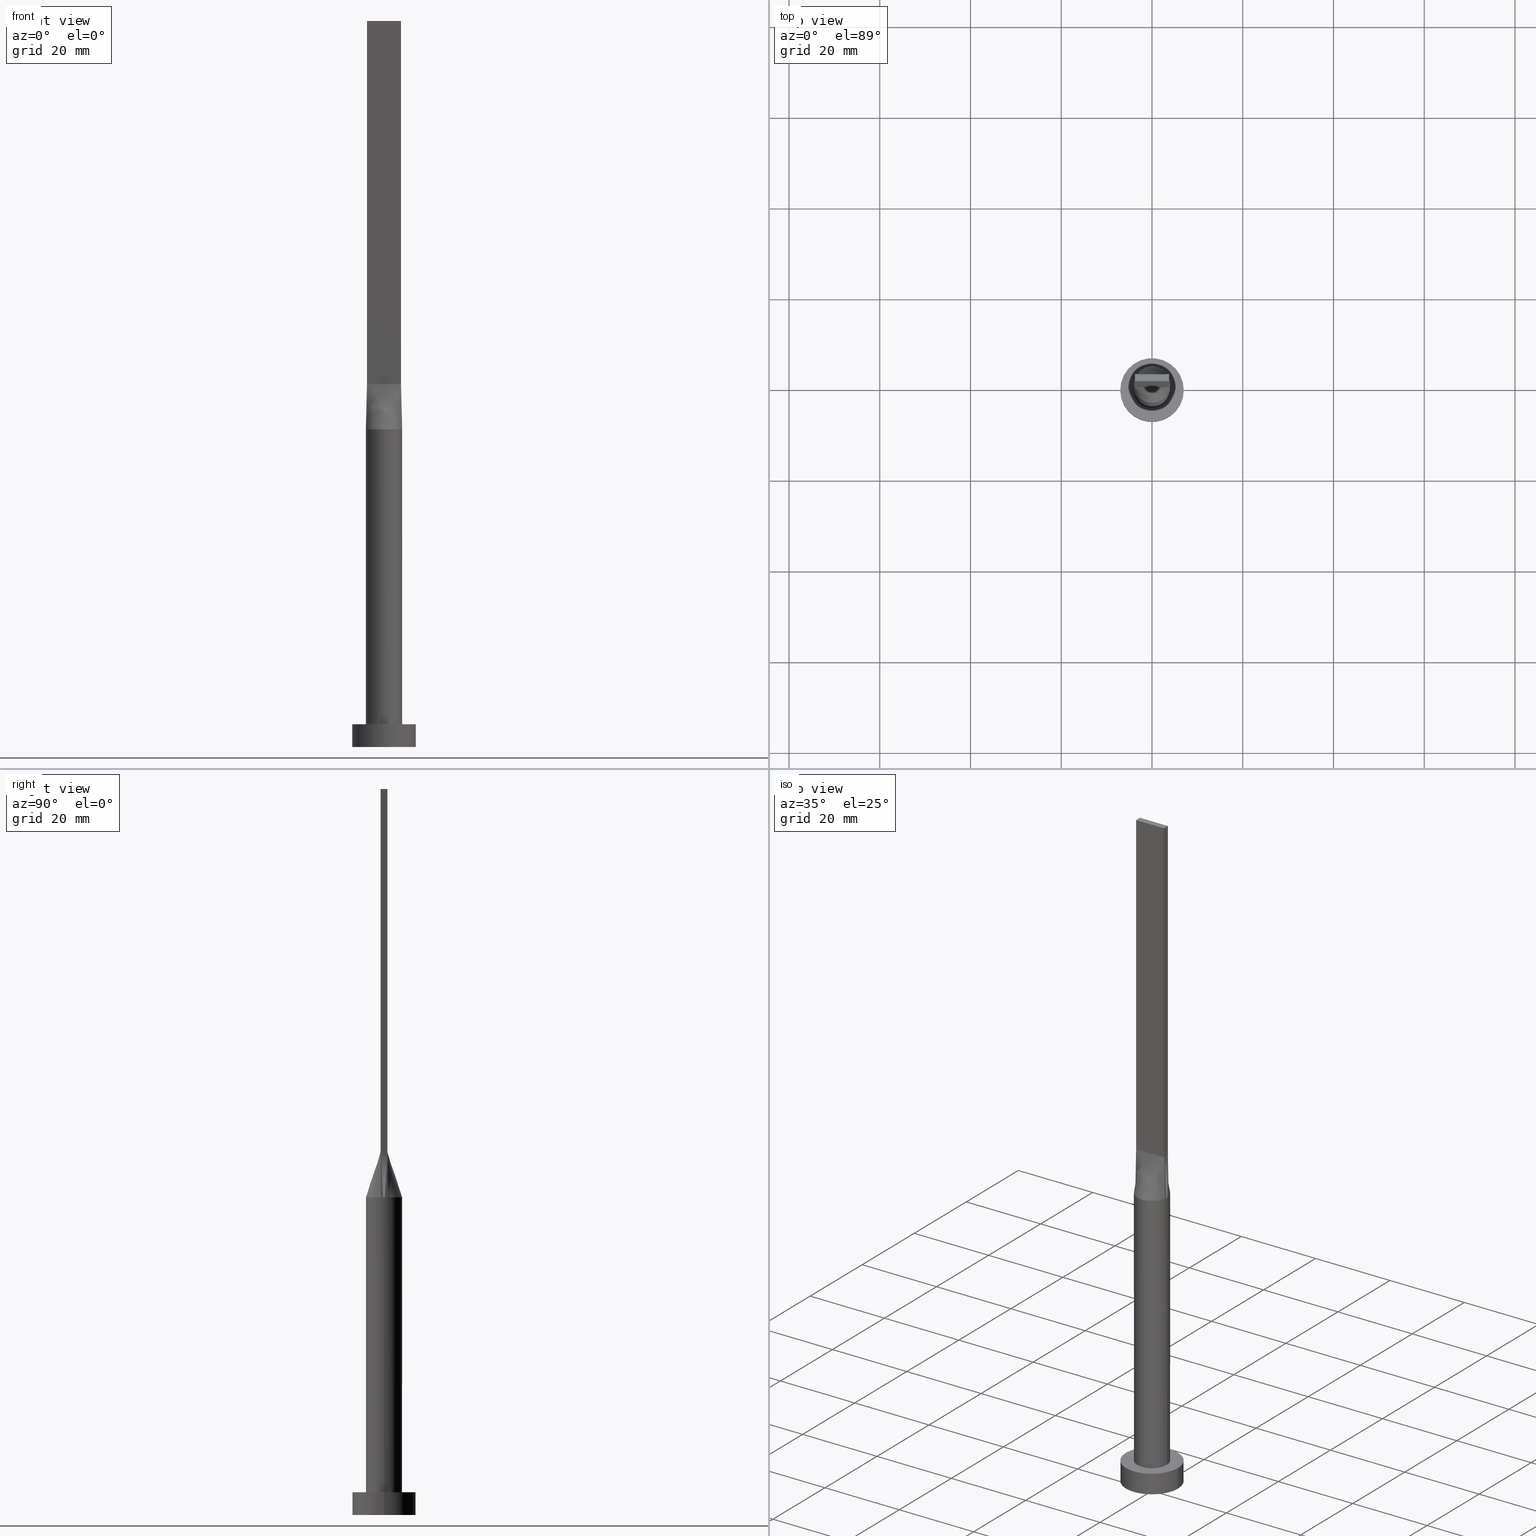
[diagram: canonical four-view strip — front | top / right | iso, engineering-drawing reading convention]
A machine part, canonical four-view strip (front | top / right | iso — engineering-drawing reading convention). The complete STEP part file that produces these views, byte-faithful:
ISO-10303-21;
HEADER;
FILE_DESCRIPTION (( 'STEP AP203' ),
    '1' );
FILE_NAME ('a728.STEP',
    '2023-02-13T10:45:21',
    ( '' ),
    ( '' ),
    'SwSTEP 2.0',
    'SolidWorks 2019',
    '' );
FILE_SCHEMA (( 'CONFIG_CONTROL_DESIGN' ));
ENDSEC;

DATA;
#1 = CIRCLE ( 'NONE', #311, 4.000000000000000000 ) ;
#2 = CARTESIAN_POINT ( 'NONE',  ( 3.750000000000000000, 0.7500000000000002220, 80.00000000000000000 ) ) ;
#3 = AXIS2_PLACEMENT_3D ( 'NONE', #348, #392, #345 ) ;
#4 = CARTESIAN_POINT ( 'NONE',  ( 3.124999999999999556, 0.7500000000000003331, 80.00000000000000000 ) ) ;
#5 = EDGE_CURVE ( 'NONE', #216, #531, #390, .T. ) ;
#6 = CARTESIAN_POINT ( 'NONE',  ( -3.390424152328988416, 2.159240079384419975, 70.00000000000001421 ) ) ;
#7 = ORIENTED_EDGE ( 'NONE', *, *, #253, .T. ) ;
#8 = CARTESIAN_POINT ( 'NONE',  ( -3.922322702763681335, -0.7844645405527344018, 70.00000000000000000 ) ) ;
#9 = DIRECTION ( 'NONE',  ( 1.000000000000000000, 0.000000000000000000, -0.000000000000000000 ) ) ;
#10 = ADVANCED_FACE ( 'NONE', ( #245 ), #334, .F. ) ;
#11 = ORIENTED_EDGE ( 'NONE', *, *, #109, .F. ) ;
#12 = CARTESIAN_POINT ( 'NONE',  ( 0.000000000000000000, 0.000000000000000000, 70.00000000000000000 ) ) ;
#13 = LINE ( 'NONE', #414, #499 ) ;
#14 = LINE ( 'NONE', #185, #482 ) ;
#15 = CARTESIAN_POINT ( 'NONE',  ( 0.000000000000000000, 0.000000000000000000, 70.00000000000000000 ) ) ;
#16 = AXIS2_PLACEMENT_3D ( 'NONE', #192, #296, #527 ) ;
#17 = LINE ( 'NONE', #513, #211 ) ;
#18 = CARTESIAN_POINT ( 'NONE',  ( 3.750000000000000000, -0.7499999999999997780, 160.0000000000000000 ) ) ;
#19 = ADVANCED_FACE ( 'NONE', ( #564 ), #23, .F. ) ;
#20 = CARTESIAN_POINT ( 'NONE',  ( 0.000000000000000000, 0.000000000000000000, 70.00000000000000000 ) ) ;
#21 = ORIENTED_EDGE ( 'NONE', *, *, #5, .T. ) ;
#22 = CARTESIAN_POINT ( 'NONE',  ( -3.750000000000000000, -0.7499999999999993339, 80.00000000000000000 ) ) ;
#23 = PLANE ( 'NONE',  #16 ) ;
#24 = CARTESIAN_POINT ( 'NONE',  ( -3.922691944042750123, 0.7845383302616953936, 70.00000000000000000 ) ) ;
#25 = VECTOR ( 'NONE', #397, 1000.000000000000000 ) ;
#26 = CC_DESIGN_PERSON_AND_ORGANIZATION_ASSIGNMENT ( #288, #437, ( #126 ) ) ;
#27 = DIRECTION ( 'NONE',  ( -0.000000000000000000, 1.000000000000000000, -0.000000000000000000 ) ) ;
#28 = COORDINATED_UNIVERSAL_TIME_OFFSET ( 1, 0, .AHEAD. ) ;
#29 = ORIENTED_EDGE ( 'NONE', *, *, #163, .F. ) ;
#30 = CARTESIAN_POINT ( 'NONE',  ( -3.750000000000000000, -0.7499999999999993339, 160.0000000000000000 ) ) ;
#31 = DIRECTION ( 'NONE',  ( 1.000000000000000000, -5.782411586589357392E-17, 0.000000000000000000 ) ) ;
#32 = EDGE_LOOP ( 'NONE', ( #566, #350, #512, #250 ) ) ;
#33 = APPROVAL_STATUS ( 'not_yet_approved' ) ;
#34 = ORIENTED_EDGE ( 'NONE', *, *, #569, .F. ) ;
#35 = CARTESIAN_POINT ( 'NONE',  ( -3.749999999999999556, 0.2499999999999998890, 79.99999999999998579 ) ) ;
#36 = CARTESIAN_POINT ( 'NONE',  ( -0.5465359351457050874, 4.000000000000000000, 69.99999999999998579 ) ) ;
#37 = ORIENTED_EDGE ( 'NONE', *, *, #214, .T. ) ;
#38 = ORIENTED_EDGE ( 'NONE', *, *, #502, .F. ) ;
#39 = SECURITY_CLASSIFICATION ( '', '', #530 ) ;
#40 = CARTESIAN_POINT ( 'NONE',  ( -3.750000000000000000, 0.7500000000000002220, 80.00000000000000000 ) ) ;
#41 = EDGE_CURVE ( 'NONE', #379, #267, #528, .T. ) ;
#42 = DIRECTION ( 'NONE',  ( -0.000000000000000000, 0.000000000000000000, -1.000000000000000000 ) ) ;
#43 = ORIENTED_EDGE ( 'NONE', *, *, #328, .T. ) ;
#44 = CARTESIAN_POINT ( 'NONE',  ( -1.091295599582913445, -3.883835547170274349, 70.00000000000000000 ) ) ;
#45 = CARTESIAN_POINT ( 'NONE',  ( -0.6250000000000019984, 0.7500000000000002220, 79.99999999999998579 ) ) ;
#46 = EDGE_CURVE ( 'NONE', #531, #319, #432, .T. ) ;
#47 = CARTESIAN_POINT ( 'NONE',  ( 1.562499999999998890, 0.7500000000000002220, 79.99999999999998579 ) ) ;
#48 = ORIENTED_EDGE ( 'NONE', *, *, #149, .T. ) ;
#49 = DIRECTION ( 'NONE',  ( 0.000000000000000000, 0.000000000000000000, 1.000000000000000000 ) ) ;
#50 = CARTESIAN_POINT ( 'NONE',  ( 3.749999999999999556, 0.5000000000000002220, 79.99999999999998579 ) ) ;
#51 = CLOSED_SHELL ( 'NONE', ( #336, #292, #426, #526, #476, #310, #174, #57, #393, #448, #19, #90, #10, #494, #119 ) ) ;
#52 = CC_DESIGN_APPROVAL ( #418, ( #39 ) ) ;
#53 = FACE_OUTER_BOUND ( 'NONE', #262, .T. ) ;
#54 = DIRECTION ( 'NONE',  ( 1.000000000000000000, 0.000000000000000000, -0.000000000000000000 ) ) ;
#55 = CARTESIAN_POINT ( 'NONE',  ( 3.750000000000000000, -0.7499999999999997780, 80.00000000000000000 ) ) ;
#56 = CIRCLE ( 'NONE', #247, 4.000000000000000000 ) ;
#57 = ADVANCED_FACE ( 'NONE', ( #382 ), #453, .T. ) ;
#58 = DIRECTION ( 'NONE',  ( -1.000000000000000000, 0.000000000000000000, 0.000000000000000000 ) ) ;
#59 = VECTOR ( 'NONE', #150, 1000.000000000000000 ) ;
#60 = DIRECTION ( 'NONE',  ( 0.000000000000000000, -1.000000000000000000, 0.000000000000000000 ) ) ;
#61 = ORGANIZATION ( 'NEUR�EN�', 'NEUR�EN�', '' ) ;
#62 = CARTESIAN_POINT ( 'NONE',  ( 0.000000000000000000, 0.000000000000000000, 0.000000000000000000 ) ) ;
#63 = CARTESIAN_POINT ( 'NONE',  ( 2.187499999999999556, -0.7499999999999995559, 79.99999999999998579 ) ) ;
#64 = CARTESIAN_POINT ( 'NONE',  ( 3.750000000000000000, -0.7499999999999997780, 160.0000000000000000 ) ) ;
#65 = APPROVAL_DATE_TIME ( #301, #418 ) ;
#66 = DIRECTION ( 'NONE',  ( -1.000000000000000000, 0.000000000000000000, 0.000000000000000000 ) ) ;
#67 = EDGE_CURVE ( 'NONE', #379, #319, #278, .T. ) ;
#68 = EDGE_LOOP ( 'NONE', ( #37, #366 ) ) ;
#69 = DATE_AND_TIME ( #260, #265 ) ;
#70 = EDGE_LOOP ( 'NONE', ( #557, #76, #506, #161, #550 ) ) ;
#71 = CARTESIAN_POINT ( 'NONE',  ( 0.000000000000000000, 0.000000000000000000, 70.00000000000000000 ) ) ;
#72 = LINE ( 'NONE', #158, #59 ) ;
#73 = AXIS2_PLACEMENT_3D ( 'NONE', #71, #166, #440 ) ;
#74 = DIRECTION ( 'NONE',  ( -1.000000000000000000, 5.782411586589357392E-17, 0.000000000000000000 ) ) ;
#75 = APPROVAL_ROLE ( '' ) ;
#76 = ORIENTED_EDGE ( 'NONE', *, *, #182, .T. ) ;
#77 =( NAMED_UNIT ( * ) PLANE_ANGLE_UNIT ( ) SI_UNIT ( $, .RADIAN. ) );
#78 = CARTESIAN_POINT ( 'NONE',  ( 3.922678046951852959, 0.7845356715334603770, 70.00000000000000000 ) ) ;
#79 = CARTESIAN_POINT ( 'NONE',  ( 3.140797583654741931, 2.520780954342106028, 70.00000000000000000 ) ) ;
#80 = APPROVAL_STATUS ( 'not_yet_approved' ) ;
#81 = CARTESIAN_POINT ( 'NONE',  ( 3.750000000000000000, 0.7500000000000002220, 160.0000000000000000 ) ) ;
#82 = CARTESIAN_POINT ( 'NONE',  ( -3.390424152328988416, 2.159240079384419975, 70.00000000000001421 ) ) ;
#83 = DATE_TIME_ROLE ( 'creation_date' ) ;
#84 = DIRECTION ( 'NONE',  ( -0.01722960997854780865, -0.003445921995709440040, -0.9998456211643809155 ) ) ;
#85 = EDGE_CURVE ( 'NONE', #332, #531, #13, .T. ) ;
#86 = CARTESIAN_POINT ( 'NONE',  ( -3.858220138661117460, -1.104977361065555774, 70.00000000000001421 ) ) ;
#87 = CIRCLE ( 'NONE', #493, 4.000000000000000000 ) ;
#88 = DIRECTION ( 'NONE',  ( -0.000000000000000000, -0.000000000000000000, -1.000000000000000000 ) ) ;
#89 = VERTEX_POINT ( 'NONE', #395 ) ;
#90 = ADVANCED_FACE ( 'NONE', ( #53 ), #233, .F. ) ;
#91 = CARTESIAN_POINT ( 'NONE',  ( -1.562500000000001332, 0.7500000000000002220, 79.99999999999998579 ) ) ;
#92 = APPROVAL_PERSON_ORGANIZATION ( #314, #243, #97 ) ;
#93 = CARTESIAN_POINT ( 'NONE',  ( -3.922322702763681335, 0.7844645405527345128, 70.00000000000000000 ) ) ;
#94 = B_SPLINE_SURFACE_WITH_KNOTS ( 'NONE', 3, 1, ( 
 ( #169, #128 ),
 ( #570, #258 ),
 ( #438, #35 ),
 ( #451, #545 ),
 ( #176, #173 ),
 ( #8, #461 ) ),
 .UNSPECIFIED., .F., .F., .F.,
 ( 4, 2, 4 ),
 ( 2, 2 ),
 ( 0.000000000000000000, 0.5000000000000000000, 1.000000000000000000 ),
 ( 0.000000000000000000, 1.000000000000000000 ),
 .UNSPECIFIED. ) ;
#95 = CARTESIAN_POINT ( 'NONE',  ( -0.5465359351457050874, 4.000000000000000000, 69.99999999999998579 ) ) ;
#96 = CARTESIAN_POINT ( 'NONE',  ( -3.124999999999999556, -0.7499999999999993339, 79.99999999999998579 ) ) ;
#97 = APPROVAL_ROLE ( '' ) ;
#98 = CARTESIAN_POINT ( 'NONE',  ( 3.750000000000000000, 0.7500000000000002220, 80.00000000000000000 ) ) ;
#99 = CARTESIAN_POINT ( 'NONE',  ( -3.750000000000000000, -0.7499999999999993339, 80.00000000000000000 ) ) ;
#100 = LOCAL_TIME ( 11, 45, 21.00000000000000000, #460 ) ;
#101 = CARTESIAN_POINT ( 'NONE',  ( 3.437499999999999556, 0.7500000000000003331, 80.00000000000000000 ) ) ;
#102 = CARTESIAN_POINT ( 'NONE',  ( -4.000000000000000000, 0.000000000000000000, 70.00000000000000000 ) ) ;
#103 = ORIENTED_EDGE ( 'NONE', *, *, #140, .T. ) ;
#104 = CARTESIAN_POINT ( 'NONE',  ( 3.390424152328988416, -2.159240079384420419, 70.00000000000002842 ) ) ;
#105 = EDGE_CURVE ( 'NONE', #436, #332, #468, .T. ) ;
#106 = FACE_OUTER_BOUND ( 'NONE', #68, .T. ) ;
#107 = DIRECTION ( 'NONE',  ( -0.000000000000000000, -0.000000000000000000, -1.000000000000000000 ) ) ;
#108 = CARTESIAN_POINT ( 'NONE',  ( -0.3125000000000004441, -0.7499999999999993339, 80.00000000000000000 ) ) ;
#109 = EDGE_CURVE ( 'NONE', #198, #524, #318, .T. ) ;
#110 = DIRECTION ( 'NONE',  ( 1.000000000000000000, 0.000000000000000000, 0.000000000000000000 ) ) ;
#111 = CARTESIAN_POINT ( 'NONE',  ( -3.748423346357937280, 1.451418640363469015, 70.00000000000001421 ) ) ;
#112 = VERTEX_POINT ( 'NONE', #177 ) ;
#113 = CARTESIAN_POINT ( 'NONE',  ( 0.000000000000000000, 0.000000000000000000, 5.000000000000000000 ) ) ;
#114 = CARTESIAN_POINT ( 'NONE',  ( 3.858220138661116128, 1.104977361065556440, 70.00000000000000000 ) ) ;
#115 = CARTESIAN_POINT ( 'NONE',  ( 3.999622889843378992, 9.846808768795811108E-16, 70.00000000000000000 ) ) ;
#116 = CARTESIAN_POINT ( 'NONE',  ( -3.836161351381840667, 0.7672322702763673119, 75.00000000000001421 ) ) ;
#117 = CARTESIAN_POINT ( 'NONE',  ( 3.390424152328985752, 2.159240079384420419, 70.00000000000001421 ) ) ;
#118 = VERTEX_POINT ( 'NONE', #464 ) ;
#119 = ADVANCED_FACE ( 'NONE', ( #146 ), #532, .T. ) ;
#120 = CARTESIAN_POINT ( 'NONE',  ( 3.922678046951852959, 0.7845356715334603770, 70.00000000000000000 ) ) ;
#121 = CALENDAR_DATE ( 2023, 13, 2 ) ;
#122 =( NAMED_UNIT ( * ) SI_UNIT ( $, .STERADIAN. ) SOLID_ANGLE_UNIT ( ) );
#123 = CARTESIAN_POINT ( 'NONE',  ( -3.922322702763681335, -0.7844645405527344018, 70.00000000000000000 ) ) ;
#124 = CARTESIAN_POINT ( 'NONE',  ( -3.750000000000000000, -0.7499999999999993339, 160.0000000000000000 ) ) ;
#125 = CARTESIAN_POINT ( 'NONE',  ( -1.562500000000000000, -0.7499999999999993339, 79.99999999999998579 ) ) ;
#126 = PRODUCT_DEFINITION_FORMATION_WITH_SPECIFIED_SOURCE ( 'LIBOVOLN�', '', #357, .NOT_KNOWN. ) ;
#127 = ORIENTED_EDGE ( 'NONE', *, *, #569, .T. ) ;
#128 = CARTESIAN_POINT ( 'NONE',  ( -3.750000000000000000, 0.7500000000000002220, 80.00000000000000000 ) ) ;
#129 = DIRECTION ( 'NONE',  ( -0.000000000000000000, -0.000000000000000000, -1.000000000000000000 ) ) ;
#130 = DIRECTION ( 'NONE',  ( -1.000000000000000000, 0.000000000000000000, 0.000000000000000000 ) ) ;
#131 = PRODUCT_RELATED_PRODUCT_CATEGORY ( 'detail', '', ( #357 ) ) ;
#132 = EDGE_LOOP ( 'NONE', ( #287, #160, #272, #21 ) ) ;
#133 = CARTESIAN_POINT ( 'NONE',  ( -3.125000000000000444, 0.7500000000000002220, 79.99999999999998579 ) ) ;
#134 = APPLICATION_CONTEXT ( 'configuration controlled 3d designs of mechanical parts and assemblies' ) ;
#135 = CIRCLE ( 'NONE', #574, 7.000000000000000000 ) ;
#136 = VECTOR ( 'NONE', #337, 1000.000000000000000 ) ;
#137 = ORIENTED_EDGE ( 'NONE', *, *, #270, .T. ) ;
#138 = AXIS2_PLACEMENT_3D ( 'NONE', #145, #413, #130 ) ;
#139 = DIRECTION ( 'NONE',  ( -0.000000000000000000, -0.000000000000000000, -1.000000000000000000 ) ) ;
#140 = EDGE_CURVE ( 'NONE', #219, #531, #180, .T. ) ;
#141 = ORIENTED_EDGE ( 'NONE', *, *, #376, .T. ) ;
#142 = CARTESIAN_POINT ( 'NONE',  ( 0.000000000000000000, 0.000000000000000000, 0.000000000000000000 ) ) ;
#143 = CARTESIAN_POINT ( 'NONE',  ( 2.499999999999999112, 0.7500000000000003331, 79.99999999999998579 ) ) ;
#144 = CARTESIAN_POINT ( 'NONE',  ( 3.749999999999999556, -0.4999999999999996669, 79.99999999999998579 ) ) ;
#145 = CARTESIAN_POINT ( 'NONE',  ( 0.000000000000000000, 0.000000000000000000, 5.000000000000000000 ) ) ;
#146 = FACE_OUTER_BOUND ( 'NONE', #484, .T. ) ;
#147 = AXIS2_PLACEMENT_3D ( 'NONE', #142, #223, #406 ) ;
#148 = PLANE ( 'NONE',  #240 ) ;
#149 = EDGE_CURVE ( 'NONE', #216, #324, #497, .T. ) ;
#150 = DIRECTION ( 'NONE',  ( 0.000000000000000000, -1.000000000000000000, 0.000000000000000000 ) ) ;
#151 = FACE_OUTER_BOUND ( 'NONE', #203, .T. ) ;
#152 = CARTESIAN_POINT ( 'NONE',  ( 3.922322702763681335, -0.7844645405527340687, 70.00000000000000000 ) ) ;
#153 = VECTOR ( 'NONE', #229, 1000.000000000000000 ) ;
#154 = AXIS2_PLACEMENT_3D ( 'NONE', #333, #190, #252 ) ;
#155 = CARTESIAN_POINT ( 'NONE',  ( 3.437499999999999556, -0.7499999999999997780, 79.99999999999998579 ) ) ;
#156 = CARTESIAN_POINT ( 'NONE',  ( 2.474203369347174331, 3.177619198138197820, 70.00000000000000000 ) ) ;
#157 = ORIENTED_EDGE ( 'NONE', *, *, #224, .F. ) ;
#158 = CARTESIAN_POINT ( 'NONE',  ( -3.750000000000000000, 0.7500000000000002220, 160.0000000000000000 ) ) ;
#159 = ORIENTED_EDGE ( 'NONE', *, *, #270, .F. ) ;
#160 = ORIENTED_EDGE ( 'NONE', *, *, #328, .F. ) ;
#161 = ORIENTED_EDGE ( 'NONE', *, *, #304, .F. ) ;
#162 = CALENDAR_DATE ( 2023, 13, 2 ) ;
#163 = EDGE_CURVE ( 'NONE', #554, #466, #235, .T. ) ;
#164 = ORIENTED_EDGE ( 'NONE', *, *, #224, .T. ) ;
#165 = PERSON_AND_ORGANIZATION_ROLE ( 'creator' ) ;
#166 = DIRECTION ( 'NONE',  ( 0.000000000000000000, 0.000000000000000000, 1.000000000000000000 ) ) ;
#167 = DIRECTION ( 'NONE',  ( 0.000000000000000000, 0.000000000000000000, 1.000000000000000000 ) ) ;
#168 = APPROVAL ( #80, 'NEUR�EN�' ) ;
#169 = CARTESIAN_POINT ( 'NONE',  ( -3.922322702763681335, 0.7844645405527354010, 70.00000000000000000 ) ) ;
#170 = CARTESIAN_POINT ( 'NONE',  ( -3.748423346357938168, -1.451418640363467683, 70.00000000000001421 ) ) ;
#171 = CARTESIAN_POINT ( 'NONE',  ( -1.250000000000001554, 0.7500000000000002220, 79.99999999999998579 ) ) ;
#172 = CARTESIAN_POINT ( 'NONE',  ( 0.6249999999999983347, 0.7500000000000002220, 79.99999999999998579 ) ) ;
#173 = CARTESIAN_POINT ( 'NONE',  ( -3.749999999999999556, -0.4999999999999996669, 79.99999999999998579 ) ) ;
#174 = ADVANCED_FACE ( 'NONE', ( #417 ), #354, .T. ) ;
#175 =( GEOMETRIC_REPRESENTATION_CONTEXT ( 3 ) GLOBAL_UNCERTAINTY_ASSIGNED_CONTEXT ( ( #209 ) ) GLOBAL_UNIT_ASSIGNED_CONTEXT ( ( #295, #77, #122 ) ) REPRESENTATION_CONTEXT ( 'NONE', 'WORKASPACE' ) );
#176 = CARTESIAN_POINT ( 'NONE',  ( -3.973604754045732435, -0.5280542841424784584, 70.00000000000000000 ) ) ;
#177 = CARTESIAN_POINT ( 'NONE',  ( -7.000000000000000000, 0.000000000000000000, 0.000000000000000000 ) ) ;
#178 = CALENDAR_DATE ( 2023, 13, 2 ) ;
#179 = DIRECTION ( 'NONE',  ( 1.000000000000000000, 0.000000000000000000, 0.000000000000000000 ) ) ;
#180 = LINE ( 'NONE', #365, #238 ) ;
#181 = ORIENTED_EDGE ( 'NONE', *, *, #411, .T. ) ;
#182 = EDGE_CURVE ( 'NONE', #198, #436, #56, .T. ) ;
#183 = DIRECTION ( 'NONE',  ( 1.000000000000000000, 0.000000000000000000, 0.000000000000000000 ) ) ;
#184 = ORIENTED_EDGE ( 'NONE', *, *, #502, .T. ) ;
#185 = CARTESIAN_POINT ( 'NONE',  ( -3.750000000000000000, 0.7500000000000002220, 80.00000000000000000 ) ) ;
#186 = CARTESIAN_POINT ( 'NONE',  ( 0.000000000000000000, 0.000000000000000000, 5.000000000000000000 ) ) ;
#187 = ORIENTED_EDGE ( 'NONE', *, *, #284, .T. ) ;
#188 = CARTESIAN_POINT ( 'NONE',  ( 0.000000000000000000, 0.000000000000000000, 70.00000000000000000 ) ) ;
#189 = ORIENTED_EDGE ( 'NONE', *, *, #441, .T. ) ;
#190 = DIRECTION ( 'NONE',  ( 0.000000000000000000, 0.000000000000000000, 1.000000000000000000 ) ) ;
#191 = CC_DESIGN_PERSON_AND_ORGANIZATION_ASSIGNMENT ( #428, #165, ( #508 ) ) ;
#192 = CARTESIAN_POINT ( 'NONE',  ( 3.750000000000000000, 0.7500000000000002220, 160.0000000000000000 ) ) ;
#193 = PERSON_AND_ORGANIZATION_ROLE ( 'classification_officer' ) ;
#194 = FACE_OUTER_BOUND ( 'NONE', #132, .T. ) ;
#195 = CIRCLE ( 'NONE', #154, 7.000000000000000000 ) ;
#196 = CARTESIAN_POINT ( 'NONE',  ( 0.3124999999999997780, -0.7499999999999994449, 79.99999999999998579 ) ) ;
#197 = CIRCLE ( 'NONE', #501, 4.000000000000000000 ) ;
#198 = VERTEX_POINT ( 'NONE', #367 ) ;
#199 = APPROVAL_DATE_TIME ( #489, #243 ) ;
#200 = EDGE_LOOP ( 'NONE', ( #226, #189, #474, #297, #355 ) ) ;
#201 = LINE ( 'NONE', #385, #444 ) ;
#202 = LINE ( 'NONE', #116, #492 ) ;
#203 = EDGE_LOOP ( 'NONE', ( #422, #181, #486, #515 ) ) ;
#204 = COORDINATED_UNIVERSAL_TIME_OFFSET ( 1, 0, .AHEAD. ) ;
#205 = EDGE_CURVE ( 'NONE', #267, #198, #1, .T. ) ;
#206 = VERTEX_POINT ( 'NONE', #429 ) ;
#207 = ORIENTED_EDGE ( 'NONE', *, *, #41, .T. ) ;
#208 = CARTESIAN_POINT ( 'NONE',  ( 0.000000000000000000, 0.000000000000000000, 5.000000000000000000 ) ) ;
#209 = UNCERTAINTY_MEASURE_WITH_UNIT (LENGTH_MEASURE( 1.000000000000000082E-05 ), #295, 'distance_accuracy_value', 'NONE');
#210 = AXIS2_PLACEMENT_3D ( 'NONE', #186, #370, #556 ) ;
#211 = VECTOR ( 'NONE', #58, 1000.000000000000000 ) ;
#212 = CARTESIAN_POINT ( 'NONE',  ( -1.091295599582913445, 3.883835547170275682, 70.00000000000001421 ) ) ;
#213 = LINE ( 'NONE', #124, #25 ) ;
#214 = EDGE_CURVE ( 'NONE', #89, #206, #135, .T. ) ;
#215 = DIRECTION ( 'NONE',  ( 0.000000000000000000, 0.000000000000000000, 1.000000000000000000 ) ) ;
#216 = VERTEX_POINT ( 'NONE', #18 ) ;
#217 = DIRECTION ( 'NONE',  ( 0.01722960997854780865, -0.003445921995709364145, 0.9998456211643809155 ) ) ;
#218 = CARTESIAN_POINT ( 'NONE',  ( -0.6250000000000003331, -0.7499999999999993339, 79.99999999999998579 ) ) ;
#219 = VERTEX_POINT ( 'NONE', #22 ) ;
#220 = CARTESIAN_POINT ( 'NONE',  ( -2.055729527861832828, 3.471178582471583063, 70.00000000000001421 ) ) ;
#221 = AXIS2_PLACEMENT_3D ( 'NONE', #375, #511, #110 ) ;
#222 = PERSON ( 'NEUR�EN�', 'NEUR�EN�', 'NEUR�EN�', ('NEUR�EN�'), ('NEUR�EN�'), ('NEUR�EN�') ) ;
#223 = DIRECTION ( 'NONE',  ( 0.000000000000000000, 0.000000000000000000, 1.000000000000000000 ) ) ;
#224 = EDGE_CURVE ( 'NONE', #529, #571, #72, .T. ) ;
#225 = FACE_OUTER_BOUND ( 'NONE', #401, .T. ) ;
#226 = ORIENTED_EDGE ( 'NONE', *, *, #560, .T. ) ;
#227 = PERSON_AND_ORGANIZATION_ROLE ( 'design_owner' ) ;
#228 = LINE ( 'NONE', #551, #431 ) ;
#229 = DIRECTION ( 'NONE',  ( -0.01722960997854780865, -0.003445921995709396671, 0.9998456211643809155 ) ) ;
#230 = AXIS2_PLACEMENT_3D ( 'NONE', #188, #373, #559 ) ;
#231 = AXIS2_PLACEMENT_3D ( 'NONE', #236, #419, #372 ) ;
#232 = FACE_OUTER_BOUND ( 'NONE', #281, .T. ) ;
#233 = PLANE ( 'NONE',  #398 ) ;
#234 = EDGE_CURVE ( 'NONE', #206, #89, #195, .T. ) ;
#235 = LINE ( 'NONE', #274, #573 ) ;
#236 = CARTESIAN_POINT ( 'NONE',  ( 0.000000000000000000, 0.000000000000000000, 0.000000000000000000 ) ) ;
#237 = CARTESIAN_POINT ( 'NONE',  ( 0.000000000000000000, 0.000000000000000000, 70.00000000000000000 ) ) ;
#238 = VECTOR ( 'NONE', #491, 1000.000000000000000 ) ;
#239 = ORIENTED_EDGE ( 'NONE', *, *, #205, .F. ) ;
#240 = AXIS2_PLACEMENT_3D ( 'NONE', #62, #472, #555 ) ;
#241 = CARTESIAN_POINT ( 'NONE',  ( 3.750000000000000000, -0.7499999999999997780, 160.0000000000000000 ) ) ;
#242 = FACE_OUTER_BOUND ( 'NONE', #471, .T. ) ;
#243 = APPROVAL ( #408, 'NEUR�EN�' ) ;
#244 = CARTESIAN_POINT ( 'NONE',  ( 1.562499999999999556, -0.7499999999999995559, 79.99999999999998579 ) ) ;
#245 = FACE_OUTER_BOUND ( 'NONE', #384, .T. ) ;
#246 = CARTESIAN_POINT ( 'NONE',  ( 0.6250000000000000000, -0.7499999999999994449, 79.99999999999998579 ) ) ;
#247 = AXIS2_PLACEMENT_3D ( 'NONE', #20, #280, #183 ) ;
#248 = VECTOR ( 'NONE', #349, 1000.000000000000000 ) ;
#249 = DIRECTION ( 'NONE',  ( 5.782411586589357392E-17, 1.000000000000000000, -0.000000000000000000 ) ) ;
#250 = ORIENTED_EDGE ( 'NONE', *, *, #580, .T. ) ;
#251 = DIRECTION ( 'NONE',  ( 0.000000000000000000, 0.000000000000000000, 1.000000000000000000 ) ) ;
#252 = DIRECTION ( 'NONE',  ( 1.000000000000000000, 0.000000000000000000, 0.000000000000000000 ) ) ;
#253 = EDGE_CURVE ( 'NONE', #112, #118, #538, .T. ) ;
#254 = CARTESIAN_POINT ( 'NONE',  ( 3.750000000000000000, -0.7499999999999997780, 80.00000000000000000 ) ) ;
#255 = ORIENTED_EDGE ( 'NONE', *, *, #346, .F. ) ;
#256 = DIRECTION ( 'NONE',  ( 1.000000000000000000, 0.000000000000000000, 0.000000000000000000 ) ) ;
#257 = DESIGN_CONTEXT ( 'detailed design', #134, 'design' ) ;
#258 = CARTESIAN_POINT ( 'NONE',  ( -3.749999999999999556, 0.5000000000000000000, 79.99999999999998579 ) ) ;
#259 = ORIENTED_EDGE ( 'NONE', *, *, #346, .T. ) ;
#260 = CALENDAR_DATE ( 2023, 13, 2 ) ;
#261 = CYLINDRICAL_SURFACE ( 'NONE', #3, 4.000000000000000000 ) ;
#262 = EDGE_LOOP ( 'NONE', ( #342, #394, #157, #137 ) ) ;
#263 = LINE ( 'NONE', #579, #378 ) ;
#264 = VECTOR ( 'NONE', #31, 1000.000000000000000 ) ;
#265 = LOCAL_TIME ( 11, 45, 21.00000000000000000, #204 ) ;
#266 = CARTESIAN_POINT ( 'NONE',  ( 3.750000000000000000, -0.7499999999999997780, 160.0000000000000000 ) ) ;
#267 = VERTEX_POINT ( 'NONE', #24 ) ;
#268 = B_SPLINE_SURFACE_WITH_KNOTS ( 'NONE', 3, 1, ( 
 ( #359, #98 ),
 ( #402, #101 ),
 ( #404, #4 ),
 ( #503, #143 ),
 ( #364, #309 ),
 ( #321, #47 ),
 ( #507, #548 ),
 ( #315, #172 ),
 ( #498, #353 ),
 ( #95, #450 ),
 ( #273, #45 ),
 ( #220, #171 ),
 ( #542, #91 ),
 ( #409, #269 ),
 ( #6, #356 ),
 ( #543, #133 ),
 ( #313, #500 ),
 ( #93, #271 ) ),
 .UNSPECIFIED., .F., .F., .F.,
 ( 4, 2, 2, 2, 2, 2, 2, 2, 4 ),
 ( 2, 2 ),
 ( 0.000000000000000000, 0.1249999999999999167, 0.2499999999999998890, 0.3749999999999998335, 0.4999999999999998890, 0.6249999999999998890, 0.7499999999999998890, 0.8750000000000000000, 1.000000000000000000 ),
 ( 0.000000000000000000, 1.000000000000000000 ),
 .UNSPECIFIED. ) ;
#269 = CARTESIAN_POINT ( 'NONE',  ( -2.187500000000000888, 0.7500000000000002220, 79.99999999999998579 ) ) ;
#270 = EDGE_CURVE ( 'NONE', #529, #374, #467, .T. ) ;
#271 = CARTESIAN_POINT ( 'NONE',  ( -3.750000000000000000, 0.7500000000000002220, 80.00000000000000000 ) ) ;
#272 = ORIENTED_EDGE ( 'NONE', *, *, #149, .F. ) ;
#273 = CARTESIAN_POINT ( 'NONE',  ( -1.091295599582913445, 3.883835547170275682, 70.00000000000001421 ) ) ;
#274 = CARTESIAN_POINT ( 'NONE',  ( 4.000000000000000000, 4.898587196589412829E-16, 70.00000000000000000 ) ) ;
#275 = CC_DESIGN_DATE_AND_TIME_ASSIGNMENT ( #578, #83, ( #508 ) ) ;
#276 = CARTESIAN_POINT ( 'NONE',  ( -2.187499999999999556, -0.7499999999999993339, 79.99999999999998579 ) ) ;
#277 = CARTESIAN_POINT ( 'NONE',  ( 0.000000000000000000, 0.000000000000000000, 5.000000000000000000 ) ) ;
#278 = LINE ( 'NONE', #581, #153 ) ;
#279 = ORIENTED_EDGE ( 'NONE', *, *, #560, .F. ) ;
#280 = DIRECTION ( 'NONE',  ( 0.000000000000000000, 0.000000000000000000, 1.000000000000000000 ) ) ;
#281 = EDGE_LOOP ( 'NONE', ( #344, #363, #339, #7 ) ) ;
#282 = LINE ( 'NONE', #469, #544 ) ;
#283 = AXIS2_PLACEMENT_3D ( 'NONE', #514, #107, #66 ) ;
#284 = EDGE_CURVE ( 'NONE', #524, #466, #536, .T. ) ;
#285 = LOCAL_TIME ( 11, 45, 21.00000000000000000, #576 ) ;
#286 = CARTESIAN_POINT ( 'NONE',  ( 3.858220138661117016, -1.104977361065556662, 70.00000000000000000 ) ) ;
#287 = ORIENTED_EDGE ( 'NONE', *, *, #46, .T. ) ;
#288 = PERSON_AND_ORGANIZATION ( #222, #61 ) ;
#289 = CARTESIAN_POINT ( 'NONE',  ( -3.922691944042750123, 0.7845383302616953936, 70.00000000000000000 ) ) ;
#290 = PERSON_AND_ORGANIZATION ( #222, #61 ) ;
#291 = CARTESIAN_POINT ( 'NONE',  ( 2.499999999999999556, -0.7499999999999996669, 79.99999999999998579 ) ) ;
#292 = ADVANCED_FACE ( 'NONE', ( #151 ), #327, .T. ) ;
#293 = CARTESIAN_POINT ( 'NONE',  ( 0.5465359351457045323, 4.000000000000000888, 70.00000000000000000 ) ) ;
#294 = PERSON_AND_ORGANIZATION ( #222, #61 ) ;
#295 =( LENGTH_UNIT ( ) NAMED_UNIT ( * ) SI_UNIT ( .MILLI., .METRE. ) );
#296 = DIRECTION ( 'NONE',  ( 0.000000000000000000, -1.000000000000000000, 0.000000000000000000 ) ) ;
#297 = ORIENTED_EDGE ( 'NONE', *, *, #46, .F. ) ;
#298 = DIRECTION ( 'NONE',  ( -0.000000000000000000, -0.000000000000000000, -1.000000000000000000 ) ) ;
#299 = CARTESIAN_POINT ( 'NONE',  ( 3.750000000000000000, 0.7500000000000002220, 160.0000000000000000 ) ) ;
#300 = ORIENTED_EDGE ( 'NONE', *, *, #5, .F. ) ;
#301 = DATE_AND_TIME ( #121, #539 ) ;
#302 = CARTESIAN_POINT ( 'NONE',  ( 3.922705552857197908, -0.7845410930675295047, 70.00000000000000000 ) ) ;
#303 = DIRECTION ( 'NONE',  ( -0.01722960997854780865, 0.003445921995709364145, 0.9998456211643809155 ) ) ;
#304 = EDGE_CURVE ( 'NONE', #374, #219, #282, .T. ) ;
#305 = APPROVAL_PERSON_ORGANIZATION ( #290, #168, #533 ) ;
#306 = CARTESIAN_POINT ( 'NONE',  ( -2.055729527861833272, -3.471178582471582175, 70.00000000000002842 ) ) ;
#307 = CARTESIAN_POINT ( 'NONE',  ( 3.750000000000000000, 0.7500000000000002220, 80.00000000000000000 ) ) ;
#308 = CARTESIAN_POINT ( 'NONE',  ( 3.973604754045732435, -0.5280542841424799017, 70.00000000000000000 ) ) ;
#309 = CARTESIAN_POINT ( 'NONE',  ( 2.187499999999999112, 0.7500000000000002220, 79.99999999999998579 ) ) ;
#310 = ADVANCED_FACE ( 'NONE', ( #242 ), #424, .T. ) ;
#311 = AXIS2_PLACEMENT_3D ( 'NONE', #237, #553, #480 ) ;
#312 = ORIENTED_EDGE ( 'NONE', *, *, #441, .F. ) ;
#313 = CARTESIAN_POINT ( 'NONE',  ( -3.858220138661117460, 1.104977361065555996, 70.00000000000000000 ) ) ;
#314 = PERSON_AND_ORGANIZATION ( #222, #61 ) ;
#315 = CARTESIAN_POINT ( 'NONE',  ( 1.091295599582912113, 3.883835547170277014, 70.00000000000002842 ) ) ;
#316 = EDGE_LOOP ( 'NONE', ( #478, #159, #38, #43 ) ) ;
#317 = PERSON_AND_ORGANIZATION ( #222, #61 ) ;
#318 = LINE ( 'NONE', #102, #389 ) ;
#319 = VERTEX_POINT ( 'NONE', #307 ) ;
#320 = VECTOR ( 'NONE', #27, 1000.000000000000000 ) ;
#321 = CARTESIAN_POINT ( 'NONE',  ( 2.474203369347174331, 3.177619198138197820, 70.00000000000000000 ) ) ;
#322 = CARTESIAN_POINT ( 'NONE',  ( 0.000000000000000000, 0.000000000000000000, 160.0000000000000000 ) ) ;
#323 = CIRCLE ( 'NONE', #231, 7.000000000000000000 ) ;
#324 = VERTEX_POINT ( 'NONE', #299 ) ;
#325 = PLANE ( 'NONE',  #403 ) ;
#326 = CARTESIAN_POINT ( 'NONE',  ( 2.474203369347176995, -3.177619198138200041, 70.00000000000004263 ) ) ;
#327 = CYLINDRICAL_SURFACE ( 'NONE', #283, 7.000000000000000000 ) ;
#328 = EDGE_CURVE ( 'NONE', #324, #319, #487, .T. ) ;
#329 = PLANE ( 'NONE',  #391 ) ;
#330 = CARTESIAN_POINT ( 'NONE',  ( 0.5465359351457046433, -4.000000000000000888, 70.00000000000001421 ) ) ;
#331 = PRODUCT_DEFINITION_SHAPE ( 'NONE', 'NONE',  #508 ) ;
#332 = VERTEX_POINT ( 'NONE', #302 ) ;
#333 = CARTESIAN_POINT ( 'NONE',  ( 0.000000000000000000, 0.000000000000000000, 5.000000000000000000 ) ) ;
#334 = PLANE ( 'NONE',  #525 ) ;
#335 = ORIENTED_EDGE ( 'NONE', *, *, #105, .F. ) ;
#336 = ADVANCED_FACE ( 'NONE', ( #540 ), #261, .T. ) ;
#337 = DIRECTION ( 'NONE',  ( -0.000000000000000000, -0.000000000000000000, -1.000000000000000000 ) ) ;
#338 = CARTESIAN_POINT ( 'NONE',  ( -3.140797583654740599, 2.520780954342106916, 70.00000000000000000 ) ) ;
#339 = ORIENTED_EDGE ( 'NONE', *, *, #534, .T. ) ;
#340 = AXIS2_PLACEMENT_3D ( 'NONE', #15, #167, #347 ) ;
#341 = CARTESIAN_POINT ( 'NONE',  ( -3.750000000000000000, -0.7499999999999993339, 160.0000000000000000 ) ) ;
#342 = ORIENTED_EDGE ( 'NONE', *, *, #304, .T. ) ;
#343 = PERSON_AND_ORGANIZATION ( #222, #61 ) ;
#344 = ORIENTED_EDGE ( 'NONE', *, *, #411, .F. ) ;
#345 = DIRECTION ( 'NONE',  ( -1.000000000000000000, 0.000000000000000000, 0.000000000000000000 ) ) ;
#346 = EDGE_CURVE ( 'NONE', #571, #216, #445, .T. ) ;
#347 = DIRECTION ( 'NONE',  ( 1.000000000000000000, 0.000000000000000000, 0.000000000000000000 ) ) ;
#348 = CARTESIAN_POINT ( 'NONE',  ( 0.000000000000000000, 0.000000000000000000, 70.00000000000000000 ) ) ;
#349 = DIRECTION ( 'NONE',  ( 0.000000000000000000, 1.000000000000000000, 0.000000000000000000 ) ) ;
#350 = ORIENTED_EDGE ( 'NONE', *, *, #85, .T. ) ;
#351 = VECTOR ( 'NONE', #496, 1000.000000000000000 ) ;
#352 = CC_DESIGN_PERSON_AND_ORGANIZATION_ASSIGNMENT ( #343, #193, ( #39 ) ) ;
#353 = CARTESIAN_POINT ( 'NONE',  ( 0.3124999999999978351, 0.7500000000000003331, 79.99999999999998579 ) ) ;
#354 = B_SPLINE_SURFACE_WITH_KNOTS ( 'NONE', 3, 1, ( 
 ( #123, #99 ),
 ( #86, #509 ),
 ( #170, #96 ),
 ( #362, #535 ),
 ( #505, #276 ),
 ( #462, #125 ),
 ( #306, #449 ),
 ( #44, #218 ),
 ( #399, #108 ),
 ( #330, #196 ),
 ( #562, #246 ),
 ( #435, #519 ),
 ( #326, #244 ),
 ( #477, #63 ),
 ( #104, #291 ),
 ( #523, #425 ),
 ( #286, #155 ),
 ( #152, #55 ) ),
 .UNSPECIFIED., .F., .F., .F.,
 ( 4, 2, 2, 2, 2, 2, 2, 2, 4 ),
 ( 2, 2 ),
 ( 0.000000000000000000, 0.1249999999999999722, 0.2500000000000000000, 0.3750000000000000000, 0.5000000000000001110, 0.6250000000000001110, 0.7500000000000000000, 0.8750000000000000000, 1.000000000000000000 ),
 ( 0.000000000000000000, 1.000000000000000000 ),
 .UNSPECIFIED. ) ;
#355 = ORIENTED_EDGE ( 'NONE', *, *, #85, .F. ) ;
#356 = CARTESIAN_POINT ( 'NONE',  ( -2.500000000000000888, 0.7500000000000002220, 79.99999999999998579 ) ) ;
#357 = PRODUCT ( 'a728', 'a728', '', ( #358 ) ) ;
#358 = MECHANICAL_CONTEXT ( 'NONE', #458, 'mechanical' ) ;
#359 = CARTESIAN_POINT ( 'NONE',  ( 3.922322702763680446, 0.7844645405527360671, 70.00000000000000000 ) ) ;
#360 = APPROVAL_PERSON_ORGANIZATION ( #294, #418, #75 ) ;
#361 = FACE_OUTER_BOUND ( 'NONE', #510, .T. ) ;
#362 = CARTESIAN_POINT ( 'NONE',  ( -3.390424152328987528, -2.159240079384418642, 69.99999999999998579 ) ) ;
#363 = ORIENTED_EDGE ( 'NONE', *, *, #214, .F. ) ;
#364 = CARTESIAN_POINT ( 'NONE',  ( 3.140797583654741931, 2.520780954342106028, 70.00000000000000000 ) ) ;
#365 = CARTESIAN_POINT ( 'NONE',  ( -3.750000000000000000, -0.7499999999999993339, 80.00000000000000000 ) ) ;
#366 = ORIENTED_EDGE ( 'NONE', *, *, #234, .T. ) ;
#367 = CARTESIAN_POINT ( 'NONE',  ( -3.999622889843378992, -9.724176664205578004E-16, 70.00000000000000000 ) ) ;
#368 = MANIFOLD_SOLID_BREP ( 'P�idat vysunut�m5', #51 ) ;
#369 = EDGE_CURVE ( 'NONE', #267, #374, #202, .T. ) ;
#370 = DIRECTION ( 'NONE',  ( 0.000000000000000000, 0.000000000000000000, 1.000000000000000000 ) ) ;
#371 = ORIENTED_EDGE ( 'NONE', *, *, #518, .F. ) ;
#372 = DIRECTION ( 'NONE',  ( 1.000000000000000000, 0.000000000000000000, 0.000000000000000000 ) ) ;
#373 = DIRECTION ( 'NONE',  ( -0.000000000000000000, -0.000000000000000000, -1.000000000000000000 ) ) ;
#374 = VERTEX_POINT ( 'NONE', #40 ) ;
#375 = CARTESIAN_POINT ( 'NONE',  ( 0.000000000000000000, 0.000000000000000000, 0.000000000000000000 ) ) ;
#376 = EDGE_CURVE ( 'NONE', #571, #219, #213, .T. ) ;
#377 = ORIENTED_EDGE ( 'NONE', *, *, #253, .F. ) ;
#378 = VECTOR ( 'NONE', #298, 1000.000000000000000 ) ;
#379 = VERTEX_POINT ( 'NONE', #78 ) ;
#380 = FACE_BOUND ( 'NONE', #415, .T. ) ;
#381 = DIRECTION ( 'NONE',  ( 0.000000000000000000, 0.000000000000000000, 1.000000000000000000 ) ) ;
#382 = FACE_OUTER_BOUND ( 'NONE', #200, .T. ) ;
#383 = CALENDAR_DATE ( 2023, 13, 2 ) ;
#384 = EDGE_LOOP ( 'NONE', ( #103, #300, #255, #141 ) ) ;
#385 = CARTESIAN_POINT ( 'NONE',  ( -3.836161351381840667, -0.7672322702763668678, 75.00000000000001421 ) ) ;
#386 = FACE_OUTER_BOUND ( 'NONE', #70, .T. ) ;
#387 = ORIENTED_EDGE ( 'NONE', *, *, #485, .F. ) ;
#388 = APPROVAL_DATE_TIME ( #69, #168 ) ;
#389 = VECTOR ( 'NONE', #88, 1000.000000000000000 ) ;
#390 = LINE ( 'NONE', #64, #442 ) ;
#391 = AXIS2_PLACEMENT_3D ( 'NONE', #277, #558, #567 ) ;
#392 = DIRECTION ( 'NONE',  ( -0.000000000000000000, -0.000000000000000000, -1.000000000000000000 ) ) ;
#393 = ADVANCED_FACE ( 'NONE', ( #386 ), #94, .T. ) ;
#394 = ORIENTED_EDGE ( 'NONE', *, *, #376, .F. ) ;
#395 = CARTESIAN_POINT ( 'NONE',  ( -7.000000000000000000, 0.000000000000000000, 5.000000000000000000 ) ) ;
#396 = ORIENTED_EDGE ( 'NONE', *, *, #109, .T. ) ;
#397 = DIRECTION ( 'NONE',  ( -0.000000000000000000, -0.000000000000000000, -1.000000000000000000 ) ) ;
#398 = AXIS2_PLACEMENT_3D ( 'NONE', #410, #9, #42 ) ;
#399 = CARTESIAN_POINT ( 'NONE',  ( -0.5465359351457051984, -4.000000000000000888, 70.00000000000000000 ) ) ;
#400 = CC_DESIGN_DATE_AND_TIME_ASSIGNMENT ( #475, #572, ( #39 ) ) ;
#401 = EDGE_LOOP ( 'NONE', ( #377, #387 ) ) ;
#402 = CARTESIAN_POINT ( 'NONE',  ( 3.858220138661116128, 1.104977361065556440, 70.00000000000000000 ) ) ;
#403 = AXIS2_PLACEMENT_3D ( 'NONE', #241, #561, #416 ) ;
#404 = CARTESIAN_POINT ( 'NONE',  ( 3.748423346357935948, 1.451418640363468349, 70.00000000000000000 ) ) ;
#405 = ORIENTED_EDGE ( 'NONE', *, *, #369, .T. ) ;
#406 = DIRECTION ( 'NONE',  ( 1.000000000000000000, 0.000000000000000000, 0.000000000000000000 ) ) ;
#407 = CARTESIAN_POINT ( 'NONE',  ( -3.922691619086878134, -0.7845384300002018474, 70.00000000000000000 ) ) ;
#408 = APPROVAL_STATUS ( 'not_yet_approved' ) ;
#409 = CARTESIAN_POINT ( 'NONE',  ( -3.140797583654740599, 2.520780954342106916, 70.00000000000000000 ) ) ;
#410 = CARTESIAN_POINT ( 'NONE',  ( -3.750000000000000000, 0.7500000000000002220, 160.0000000000000000 ) ) ;
#411 = EDGE_CURVE ( 'NONE', #206, #118, #228, .T. ) ;
#412 = ORIENTED_EDGE ( 'NONE', *, *, #284, .F. ) ;
#413 = DIRECTION ( 'NONE',  ( -0.000000000000000000, -0.000000000000000000, -1.000000000000000000 ) ) ;
#414 = CARTESIAN_POINT ( 'NONE',  ( 3.836161351381840667, -0.7672322702763668678, 75.00000000000001421 ) ) ;
#415 = EDGE_LOOP ( 'NONE', ( #412, #34 ) ) ;
#416 = DIRECTION ( 'NONE',  ( 0.000000000000000000, 0.000000000000000000, 1.000000000000000000 ) ) ;
#417 = FACE_OUTER_BOUND ( 'NONE', #32, .T. ) ;
#418 = APPROVAL ( #33, 'NEUR�EN�' ) ;
#419 = DIRECTION ( 'NONE',  ( 0.000000000000000000, 0.000000000000000000, 1.000000000000000000 ) ) ;
#420 = CARTESIAN_POINT ( 'NONE',  ( -3.750000000000000000, 0.7500000000000002220, 160.0000000000000000 ) ) ;
#421 = CC_DESIGN_SECURITY_CLASSIFICATION ( #39, ( #126 ) ) ;
#422 = ORIENTED_EDGE ( 'NONE', *, *, #234, .F. ) ;
#423 = DIRECTION ( 'NONE',  ( -1.000000000000000000, -0.000000000000000000, -0.000000000000000000 ) ) ;
#424 = CYLINDRICAL_SURFACE ( 'NONE', #230, 4.000000000000000000 ) ;
#425 = CARTESIAN_POINT ( 'NONE',  ( 3.124999999999999112, -0.7499999999999997780, 79.99999999999998579 ) ) ;
#426 = ADVANCED_FACE ( 'NONE', ( #232 ), #456, .T. ) ;
#427 = CARTESIAN_POINT ( 'NONE',  ( -2.055729527861832828, 3.471178582471583063, 70.00000000000001421 ) ) ;
#428 = PERSON_AND_ORGANIZATION ( #222, #61 ) ;
#429 = CARTESIAN_POINT ( 'NONE',  ( 7.000000000000000000, 8.572527594031473190E-16, 5.000000000000000000 ) ) ;
#430 = ADVANCED_BREP_SHAPE_REPRESENTATION ( 'a728', ( #368, #147 ), #175 ) ;
#431 = VECTOR ( 'NONE', #139, 1000.000000000000000 ) ;
#432 = LINE ( 'NONE', #577, #320 ) ;
#433 = PERSON_AND_ORGANIZATION_ROLE ( 'design_supplier' ) ;
#434 = ORIENTED_EDGE ( 'NONE', *, *, #163, .T. ) ;
#435 = CARTESIAN_POINT ( 'NONE',  ( 2.055729527861832828, -3.471178582471583063, 70.00000000000001421 ) ) ;
#436 = VERTEX_POINT ( 'NONE', #407 ) ;
#437 = PERSON_AND_ORGANIZATION_ROLE ( 'creator' ) ;
#438 = CARTESIAN_POINT ( 'NONE',  ( -3.999245779686757984, 0.2640271420712399508, 70.00000000000000000 ) ) ;
#439 = CARTESIAN_POINT ( 'NONE',  ( 1.091295599582912113, 3.883835547170277014, 70.00000000000002842 ) ) ;
#440 = DIRECTION ( 'NONE',  ( 1.000000000000000000, -1.421085471520200372E-14, 0.000000000000000000 ) ) ;
#441 = EDGE_CURVE ( 'NONE', #554, #379, #87, .T. ) ;
#442 = VECTOR ( 'NONE', #575, 1000.000000000000000 ) ;
#443 = CARTESIAN_POINT ( 'NONE',  ( -3.858220138661117460, 1.104977361065555996, 70.00000000000000000 ) ) ;
#444 = VECTOR ( 'NONE', #84, 1000.000000000000000 ) ;
#445 = LINE ( 'NONE', #447, #264 ) ;
#446 = CARTESIAN_POINT ( 'NONE',  ( 3.749999999999999556, 0.2500000000000003331, 79.99999999999998579 ) ) ;
#447 = CARTESIAN_POINT ( 'NONE',  ( -3.750000000000000000, -0.7499999999999993339, 160.0000000000000000 ) ) ;
#448 = ADVANCED_FACE ( 'NONE', ( #361 ), #268, .T. ) ;
#449 = CARTESIAN_POINT ( 'NONE',  ( -1.250000000000000222, -0.7499999999999993339, 79.99999999999998579 ) ) ;
#450 = CARTESIAN_POINT ( 'NONE',  ( -0.3125000000000022204, 0.7500000000000003331, 79.99999999999998579 ) ) ;
#451 = CARTESIAN_POINT ( 'NONE',  ( -3.999245779686757984, -0.2640271420712390071, 70.00000000000000000 ) ) ;
#452 = CARTESIAN_POINT ( 'NONE',  ( 4.000000000000000000, 4.898587196589412829E-16, 5.000000000000000000 ) ) ;
#453 = B_SPLINE_SURFACE_WITH_KNOTS ( 'NONE', 3, 1, ( 
 ( #481, #254 ),
 ( #308, #144 ),
 ( #495, #457 ),
 ( #549, #446 ),
 ( #552, #50 ),
 ( #541, #2 ) ),
 .UNSPECIFIED., .F., .F., .F.,
 ( 4, 2, 4 ),
 ( 2, 2 ),
 ( 0.000000000000000000, 0.5000000000000000000, 1.000000000000000000 ),
 ( 0.000000000000000000, 1.000000000000000000 ),
 .UNSPECIFIED. ) ;
#454 = APPLICATION_PROTOCOL_DEFINITION ( 'international standard', 'config_control_design', 1994, #458 ) ;
#455 = CC_DESIGN_PERSON_AND_ORGANIZATION_ASSIGNMENT ( #317, #227, ( #357 ) ) ;
#456 = CYLINDRICAL_SURFACE ( 'NONE', #138, 7.000000000000000000 ) ;
#457 = CARTESIAN_POINT ( 'NONE',  ( 3.749999999999999556, -0.2499999999999996669, 79.99999999999998579 ) ) ;
#458 = APPLICATION_CONTEXT ( 'configuration controlled 3d designs of mechanical parts and assemblies' ) ;
#459 = ORIENTED_EDGE ( 'NONE', *, *, #182, .F. ) ;
#460 = COORDINATED_UNIVERSAL_TIME_OFFSET ( 1, 0, .AHEAD. ) ;
#461 = CARTESIAN_POINT ( 'NONE',  ( -3.750000000000000000, -0.7499999999999993339, 80.00000000000000000 ) ) ;
#462 = CARTESIAN_POINT ( 'NONE',  ( -2.474203369347176107, -3.177619198138197820, 70.00000000000002842 ) ) ;
#463 = CARTESIAN_POINT ( 'NONE',  ( -3.750000000000000000, 0.7500000000000002220, 160.0000000000000000 ) ) ;
#464 = CARTESIAN_POINT ( 'NONE',  ( 7.000000000000000000, 8.572527594031473190E-16, 0.000000000000000000 ) ) ;
#465 = CC_DESIGN_PERSON_AND_ORGANIZATION_ASSIGNMENT ( #483, #433, ( #126 ) ) ;
#466 = VERTEX_POINT ( 'NONE', #452 ) ;
#467 = LINE ( 'NONE', #420, #136 ) ;
#468 = CIRCLE ( 'NONE', #340, 4.000000000000000000 ) ;
#469 = CARTESIAN_POINT ( 'NONE',  ( -3.750000000000000000, 0.7500000000000002220, 80.00000000000000000 ) ) ;
#470 = CC_DESIGN_APPROVAL ( #168, ( #126 ) ) ;
#471 = EDGE_LOOP ( 'NONE', ( #29, #279, #335, #459, #396, #187 ) ) ;
#472 = DIRECTION ( 'NONE',  ( 0.000000000000000000, 0.000000000000000000, 1.000000000000000000 ) ) ;
#473 = DIRECTION ( 'NONE',  ( 1.000000000000000000, 0.000000000000000000, 0.000000000000000000 ) ) ;
#474 = ORIENTED_EDGE ( 'NONE', *, *, #67, .T. ) ;
#475 = DATE_AND_TIME ( #383, #546 ) ;
#476 = ADVANCED_FACE ( 'NONE', ( #225 ), #148, .F. ) ;
#477 = CARTESIAN_POINT ( 'NONE',  ( 3.140797583654741487, -2.520780954342107805, 70.00000000000001421 ) ) ;
#478 = ORIENTED_EDGE ( 'NONE', *, *, #518, .T. ) ;
#479 = CARTESIAN_POINT ( 'NONE',  ( 3.750000000000000000, -0.7499999999999997780, 80.00000000000000000 ) ) ;
#480 = DIRECTION ( 'NONE',  ( 1.000000000000000000, 0.000000000000000000, 0.000000000000000000 ) ) ;
#481 = CARTESIAN_POINT ( 'NONE',  ( 3.922322702763681335, -0.7844645405527358450, 70.00000000000000000 ) ) ;
#482 = VECTOR ( 'NONE', #423, 1000.000000000000000 ) ;
#483 = PERSON_AND_ORGANIZATION ( #222, #61 ) ;
#484 = EDGE_LOOP ( 'NONE', ( #184, #164, #259, #48 ) ) ;
#485 = EDGE_CURVE ( 'NONE', #118, #112, #323, .T. ) ;
#486 = ORIENTED_EDGE ( 'NONE', *, *, #485, .T. ) ;
#487 = LINE ( 'NONE', #81, #351 ) ;
#488 = CARTESIAN_POINT ( 'NONE',  ( 3.748423346357935948, 1.451418640363468349, 70.00000000000000000 ) ) ;
#489 = DATE_AND_TIME ( #178, #100 ) ;
#490 = AXIS2_PLACEMENT_3D ( 'NONE', #322, #215, #54 ) ;
#491 = DIRECTION ( 'NONE',  ( 1.000000000000000000, -5.782411586589357392E-17, 0.000000000000000000 ) ) ;
#492 = VECTOR ( 'NONE', #217, 1000.000000000000000 ) ;
#493 = AXIS2_PLACEMENT_3D ( 'NONE', #12, #49, #179 ) ;
#494 = ADVANCED_FACE ( 'NONE', ( #194 ), #325, .F. ) ;
#495 = CARTESIAN_POINT ( 'NONE',  ( 3.999245779686757984, -0.2640271420712401729, 70.00000000000000000 ) ) ;
#496 = DIRECTION ( 'NONE',  ( -0.000000000000000000, -0.000000000000000000, -1.000000000000000000 ) ) ;
#497 = LINE ( 'NONE', #266, #248 ) ;
#498 = CARTESIAN_POINT ( 'NONE',  ( 0.5465359351457045323, 4.000000000000000888, 70.00000000000000000 ) ) ;
#499 = VECTOR ( 'NONE', #303, 1000.000000000000000 ) ;
#500 = CARTESIAN_POINT ( 'NONE',  ( -3.437500000000000444, 0.7500000000000002220, 79.99999999999998579 ) ) ;
#501 = AXIS2_PLACEMENT_3D ( 'NONE', #208, #251, #256 ) ;
#502 = EDGE_CURVE ( 'NONE', #324, #529, #17, .T. ) ;
#503 = CARTESIAN_POINT ( 'NONE',  ( 3.390424152328985752, 2.159240079384420419, 70.00000000000001421 ) ) ;
#504 = APPLICATION_PROTOCOL_DEFINITION ( 'international standard', 'config_control_design', 1994, #134 ) ;
#505 = CARTESIAN_POINT ( 'NONE',  ( -3.140797583654741043, -2.520780954342105140, 70.00000000000001421 ) ) ;
#506 = ORIENTED_EDGE ( 'NONE', *, *, #580, .F. ) ;
#507 = CARTESIAN_POINT ( 'NONE',  ( 2.055729527861830608, 3.471178582471582619, 70.00000000000000000 ) ) ;
#508 = PRODUCT_DEFINITION ( 'NEZN�M�', '', #126, #257 ) ;
#509 = CARTESIAN_POINT ( 'NONE',  ( -3.437499999999999556, -0.7499999999999993339, 79.99999999999998579 ) ) ;
#510 = EDGE_LOOP ( 'NONE', ( #207, #405, #371, #517 ) ) ;
#511 = DIRECTION ( 'NONE',  ( 0.000000000000000000, 0.000000000000000000, 1.000000000000000000 ) ) ;
#512 = ORIENTED_EDGE ( 'NONE', *, *, #140, .F. ) ;
#513 = CARTESIAN_POINT ( 'NONE',  ( 3.750000000000000000, 0.7500000000000002220, 160.0000000000000000 ) ) ;
#514 = CARTESIAN_POINT ( 'NONE',  ( 0.000000000000000000, 0.000000000000000000, 5.000000000000000000 ) ) ;
#515 = ORIENTED_EDGE ( 'NONE', *, *, #534, .F. ) ;
#516 = CC_DESIGN_APPROVAL ( #243, ( #508 ) ) ;
#517 = ORIENTED_EDGE ( 'NONE', *, *, #67, .F. ) ;
#518 = EDGE_CURVE ( 'NONE', #319, #374, #14, .T. ) ;
#519 = CARTESIAN_POINT ( 'NONE',  ( 1.250000000000000000, -0.7499999999999995559, 79.99999999999998579 ) ) ;
#520 = CARTESIAN_POINT ( 'NONE',  ( -2.474203369347175219, 3.177619198138199152, 70.00000000000001421 ) ) ;
#521 = SHAPE_DEFINITION_REPRESENTATION ( #331, #430 ) ;
#522 = CARTESIAN_POINT ( 'NONE',  ( -4.000000000000000000, 0.000000000000000000, 5.000000000000000000 ) ) ;
#523 = CARTESIAN_POINT ( 'NONE',  ( 3.748423346357937280, -1.451418640363469015, 70.00000000000001421 ) ) ;
#524 = VERTEX_POINT ( 'NONE', #522 ) ;
#525 = AXIS2_PLACEMENT_3D ( 'NONE', #341, #249, #74 ) ;
#526 = ADVANCED_FACE ( 'NONE', ( #380, #106 ), #329, .T. ) ;
#527 = DIRECTION ( 'NONE',  ( 0.000000000000000000, -0.000000000000000000, -1.000000000000000000 ) ) ;
#528 = B_SPLINE_CURVE_WITH_KNOTS ( 'NONE', 3,
 ( #120, #114, #488, #117, #79, #156, #568, #439, #293, #36, #212, #427, #520, #338, #82, #111, #443, #289 ),
 .UNSPECIFIED., .F., .F.,
 ( 4, 2, 2, 2, 2, 2, 2, 2, 4 ),
 ( 0.000000000000000000, 0.1249999999999999167, 0.2499999999999998890, 0.3749999999999998335, 0.4999999999999998890, 0.6249999999999998890, 0.7499999999999998890, 0.8750000000000000000, 1.000000000000000000 ),
 .UNSPECIFIED. ) ;
#529 = VERTEX_POINT ( 'NONE', #463 ) ;
#530 = SECURITY_CLASSIFICATION_LEVEL ( 'unclassified' ) ;
#531 = VERTEX_POINT ( 'NONE', #479 ) ;
#532 = PLANE ( 'NONE',  #490 ) ;
#533 = APPROVAL_ROLE ( '' ) ;
#534 = EDGE_CURVE ( 'NONE', #89, #112, #263, .T. ) ;
#535 = CARTESIAN_POINT ( 'NONE',  ( -2.500000000000000000, -0.7499999999999993339, 79.99999999999998579 ) ) ;
#536 = CIRCLE ( 'NONE', #210, 4.000000000000000000 ) ;
#537 = EDGE_LOOP ( 'NONE', ( #312, #434, #127, #11, #239, #547 ) ) ;
#538 = CIRCLE ( 'NONE', #221, 7.000000000000000000 ) ;
#539 = LOCAL_TIME ( 11, 45, 21.00000000000000000, #565 ) ;
#540 = FACE_OUTER_BOUND ( 'NONE', #537, .T. ) ;
#541 = CARTESIAN_POINT ( 'NONE',  ( 3.922322702763681335, 0.7844645405527348458, 70.00000000000000000 ) ) ;
#542 = CARTESIAN_POINT ( 'NONE',  ( -2.474203369347175219, 3.177619198138199152, 70.00000000000001421 ) ) ;
#543 = CARTESIAN_POINT ( 'NONE',  ( -3.748423346357937280, 1.451418640363469015, 70.00000000000001421 ) ) ;
#544 = VECTOR ( 'NONE', #60, 1000.000000000000000 ) ;
#545 = CARTESIAN_POINT ( 'NONE',  ( -3.749999999999999556, -0.2499999999999998890, 79.99999999999998579 ) ) ;
#546 = LOCAL_TIME ( 11, 45, 21.00000000000000000, #28 ) ;
#547 = ORIENTED_EDGE ( 'NONE', *, *, #41, .F. ) ;
#548 = CARTESIAN_POINT ( 'NONE',  ( 1.249999999999998668, 0.7500000000000002220, 79.99999999999998579 ) ) ;
#549 = CARTESIAN_POINT ( 'NONE',  ( 3.999245779686757984, 0.2640271420712392292, 70.00000000000000000 ) ) ;
#550 = ORIENTED_EDGE ( 'NONE', *, *, #369, .F. ) ;
#551 = CARTESIAN_POINT ( 'NONE',  ( 7.000000000000000000, 8.572527594031473190E-16, 5.000000000000000000 ) ) ;
#552 = CARTESIAN_POINT ( 'NONE',  ( 3.973604754045732435, 0.5280542841424789025, 70.00000000000000000 ) ) ;
#553 = DIRECTION ( 'NONE',  ( 0.000000000000000000, 0.000000000000000000, 1.000000000000000000 ) ) ;
#554 = VERTEX_POINT ( 'NONE', #115 ) ;
#555 = DIRECTION ( 'NONE',  ( 1.000000000000000000, 0.000000000000000000, -0.000000000000000000 ) ) ;
#556 = DIRECTION ( 'NONE',  ( 1.000000000000000000, 0.000000000000000000, 0.000000000000000000 ) ) ;
#557 = ORIENTED_EDGE ( 'NONE', *, *, #205, .T. ) ;
#558 = DIRECTION ( 'NONE',  ( 0.000000000000000000, 0.000000000000000000, 1.000000000000000000 ) ) ;
#559 = DIRECTION ( 'NONE',  ( -1.000000000000000000, 0.000000000000000000, 0.000000000000000000 ) ) ;
#560 = EDGE_CURVE ( 'NONE', #332, #554, #563, .T. ) ;
#561 = DIRECTION ( 'NONE',  ( -1.000000000000000000, 0.000000000000000000, 0.000000000000000000 ) ) ;
#562 = CARTESIAN_POINT ( 'NONE',  ( 1.091295599582912557, -3.883835547170275682, 70.00000000000001421 ) ) ;
#563 = CIRCLE ( 'NONE', #73, 4.000000000000000000 ) ;
#564 = FACE_OUTER_BOUND ( 'NONE', #316, .T. ) ;
#565 = COORDINATED_UNIVERSAL_TIME_OFFSET ( 1, 0, .AHEAD. ) ;
#566 = ORIENTED_EDGE ( 'NONE', *, *, #105, .T. ) ;
#567 = DIRECTION ( 'NONE',  ( 1.000000000000000000, 0.000000000000000000, -0.000000000000000000 ) ) ;
#568 = CARTESIAN_POINT ( 'NONE',  ( 2.055729527861830608, 3.471178582471582619, 70.00000000000000000 ) ) ;
#569 = EDGE_CURVE ( 'NONE', #466, #524, #197, .T. ) ;
#570 = CARTESIAN_POINT ( 'NONE',  ( -3.973604754045732435, 0.5280542841424794576, 70.00000000000000000 ) ) ;
#571 = VERTEX_POINT ( 'NONE', #30 ) ;
#572 = DATE_TIME_ROLE ( 'classification_date' ) ;
#573 = VECTOR ( 'NONE', #129, 1000.000000000000000 ) ;
#574 = AXIS2_PLACEMENT_3D ( 'NONE', #113, #381, #473 ) ;
#575 = DIRECTION ( 'NONE',  ( -0.000000000000000000, -0.000000000000000000, -1.000000000000000000 ) ) ;
#576 = COORDINATED_UNIVERSAL_TIME_OFFSET ( 1, 0, .AHEAD. ) ;
#577 = CARTESIAN_POINT ( 'NONE',  ( 3.750000000000000000, 0.7500000000000002220, 80.00000000000000000 ) ) ;
#578 = DATE_AND_TIME ( #162, #285 ) ;
#579 = CARTESIAN_POINT ( 'NONE',  ( -7.000000000000000000, 0.000000000000000000, 5.000000000000000000 ) ) ;
#580 = EDGE_CURVE ( 'NONE', #219, #436, #201, .T. ) ;
#581 = CARTESIAN_POINT ( 'NONE',  ( 3.836161351381840667, 0.7672322702763675339, 75.00000000000001421 ) ) ;
ENDSEC;
END-ISO-10303-21;
